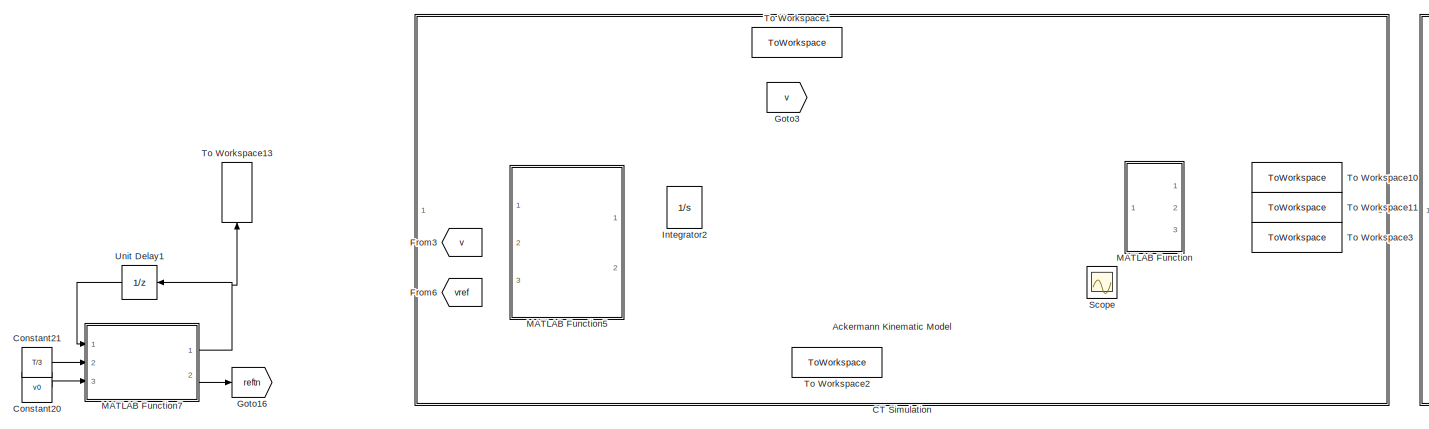
[diagram: root canvas - part 1/4, top left region]
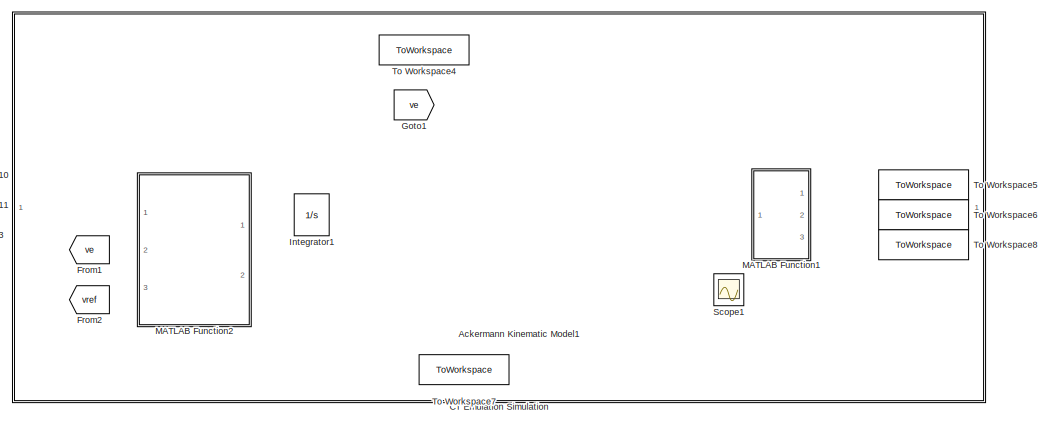
[diagram: root canvas - part 2/4, top right region]
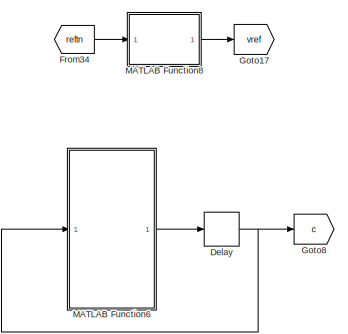
[diagram: root canvas - part 3/4, bottom left region]
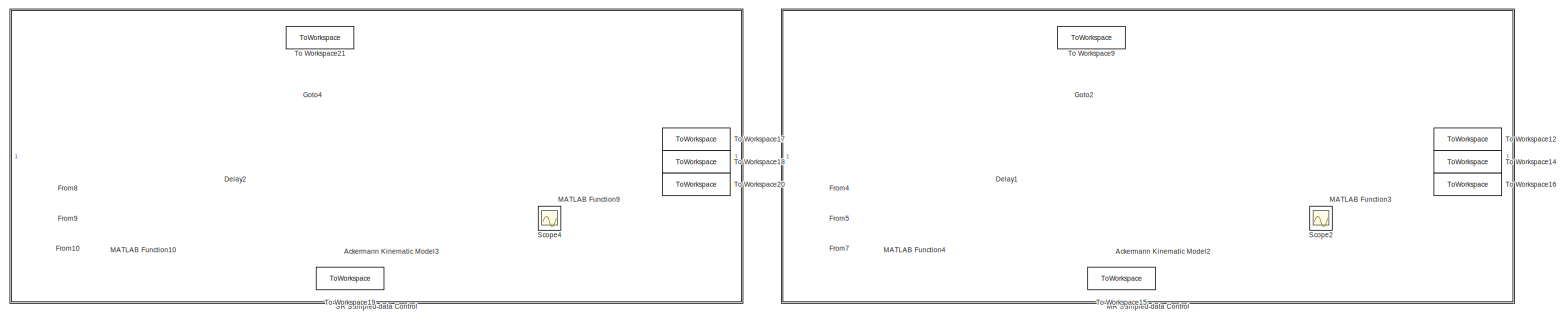
[diagram: root canvas - part 4/4, full width, bottom band]
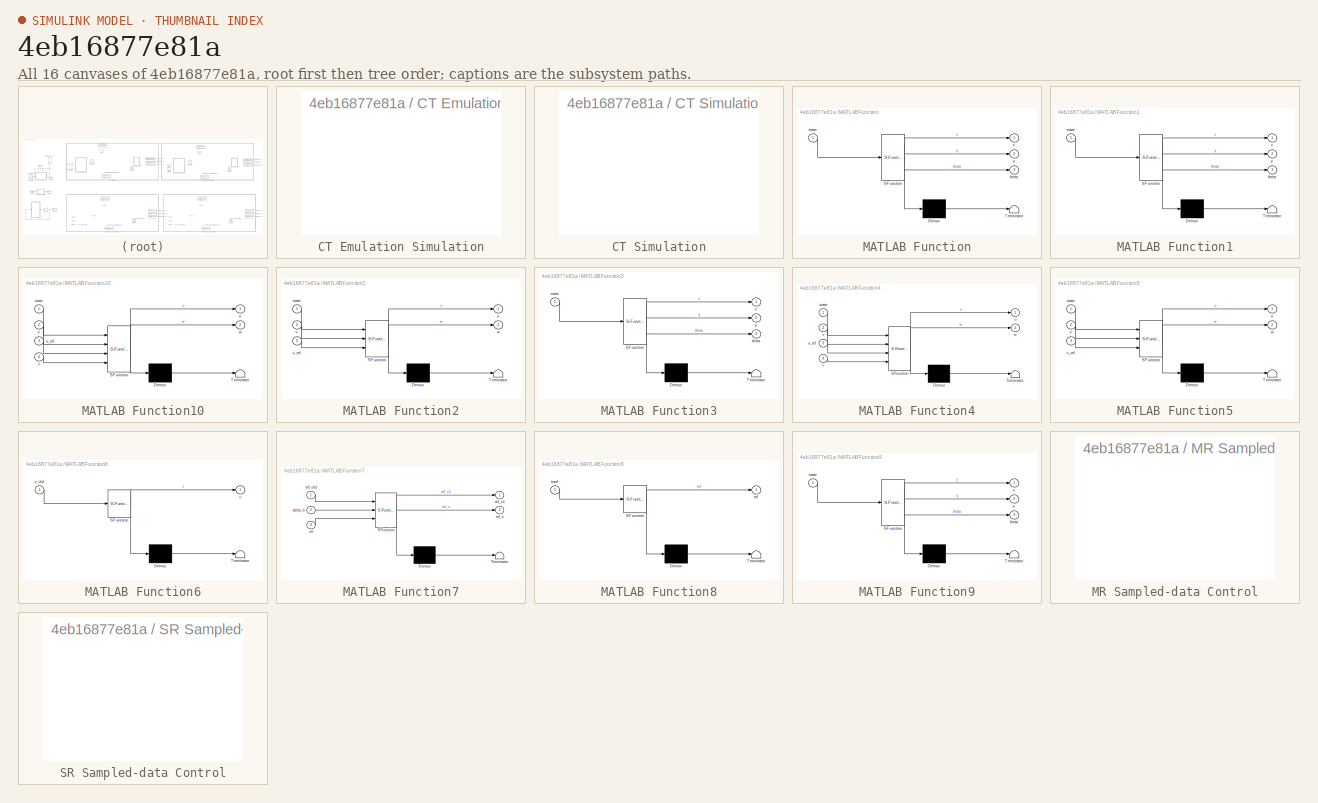
[diagram: thumbnail index - all 16 canvases of the model, root first then tree order]
MODEL slx_4eb16877e81a
KIND model
CONFIG AbsTol = auto
CONFIG EnableMultiTasking = off
CONFIG FixedStep = auto
CONFIG MaxStep = auto
CONFIG MinStep = auto
CONFIG RelTol = 1e-3
CONFIG SampleTimeConstraint = Unconstrained
CONFIG Solver = VariableStepAuto
CONFIG SolverName = VariableStepAuto
CONFIG StartTime = 0.0
CONFIG StopTime = simTime
BLOCK [Reference] Ackermann Kinematic Model  REF=robotmobilelib/Ackermann Kinematic Model
  Ports = [2, 2]
  SourceBlock = robotmobilelib/Ackermann Kinematic Model
  SourceProductBaseCode = RO
  SourceProductName = Robotics System Toolbox
  SourceType = Ackermann Kinematic Model
BLOCK [Reference] Ackermann Kinematic Model1  REF=robotmobilelib/Ackermann Kinematic Model
  Ports = [2, 2]
  SourceBlock = robotmobilelib/Ackermann Kinematic Model
  SourceProductBaseCode = RO
  SourceProductName = Robotics System Toolbox
  SourceType = Ackermann Kinematic Model
BLOCK [Reference] Ackermann Kinematic Model2  REF=robotmobilelib/Ackermann Kinematic Model
  Ports = [2, 2]
  SourceBlock = robotmobilelib/Ackermann Kinematic Model
  SourceProductBaseCode = RO
  SourceProductName = Robotics System Toolbox
  SourceType = Ackermann Kinematic Model
BLOCK [Reference] Ackermann Kinematic Model3  REF=robotmobilelib/Ackermann Kinematic Model
  Ports = [2, 2]
  SourceBlock = robotmobilelib/Ackermann Kinematic Model
  SourceProductBaseCode = RO
  SourceProductName = Robotics System Toolbox
  SourceType = Ackermann Kinematic Model
BLOCK [SubSystem] CT Emulation Simulation
  Ports = []
  RequestExecContextInheritance = off
BLOCK [SubSystem] CT Simulation
  Ports = []
  RequestExecContextInheritance = off
BLOCK [Constant] Constant20
  Value = v0
BLOCK [Constant] Constant21
  Value = T/3
BLOCK [Delay] Delay
  DelayLength = 1
  InitialCondition = 0
  InputPortMap = u0
  Ports = [1, 1]
  SampleTime = T/3
BLOCK [Delay] Delay1
  DelayLength = 1
  InitialCondition = v0
  InputPortMap = u0
  Ports = [1, 1]
  SampleTime = T
BLOCK [Delay] Delay2
  DelayLength = 1
  InitialCondition = v0
  InputPortMap = u0
  Ports = [1, 1]
  SampleTime = T
BLOCK [From] From1
  GotoTag = ve
BLOCK [From] From10
  GotoTag = c
BLOCK [From] From2
  GotoTag = vref
BLOCK [From] From3
  GotoTag = v
BLOCK [From] From34
  GotoTag = reftn
BLOCK [From] From4
  GotoTag = vmr
BLOCK [From] From5
  GotoTag = vref
BLOCK [From] From6
  GotoTag = vref
BLOCK [From] From7
  GotoTag = c
BLOCK [From] From8
  GotoTag = vsd
BLOCK [From] From9
  GotoTag = vref
BLOCK [Goto] Goto1
  GotoTag = ve
BLOCK [Goto] Goto16
  GotoTag = reftn
BLOCK [Goto] Goto17
  GotoTag = vref
BLOCK [Goto] Goto2
  GotoTag = vmr
BLOCK [Goto] Goto3
  GotoTag = v
BLOCK [Goto] Goto4
  GotoTag = vsd
BLOCK [Goto] Goto8
  GotoTag = c
BLOCK [Integrator] Integrator1
  InitialCondition = v0
  Ports = [1, 1]
BLOCK [Integrator] Integrator2
  InitialCondition = v0
  Ports = [1, 1]
BLOCK [SubSystem] MATLAB Function
  ErrorFcn = Stateflow.Translate.translate
  PermitHierarchicalResolution = ExplicitOnly
  Ports = [1, 3]
  RequestExecContextInheritance = off
  SFBlockType = MATLAB Function
  TreatAsAtomicUnit = on
BLOCK [Demux] MATLAB Function/ Demux 
  Outputs = 1
  Ports = [1, 1]
BLOCK [S-Function] MATLAB Function/ SFunction 
  EnableBusSupport = on
  FunctionName = sf_sfun
  PortCounts = [1 4]
  Ports = [1, 4]
  SFcnIsStateOwnerBlock = off
  SFunctionDeploymentMode = off
  Tag = Stateflow S-Function 1
BLOCK [Terminator] MATLAB Function/ Terminator 
BLOCK [Inport] MATLAB Function/state
  IconDisplay = Port number
BLOCK [Outport] MATLAB Function/theta
  IconDisplay = Port number
  Port = 3
BLOCK [Outport] MATLAB Function/x
  IconDisplay = Port number
BLOCK [Outport] MATLAB Function/y
  IconDisplay = Port number
  Port = 2
BLOCK [SubSystem] MATLAB Function1
  ErrorFcn = Stateflow.Translate.translate
  PermitHierarchicalResolution = ExplicitOnly
  Ports = [1, 3]
  RequestExecContextInheritance = off
  SFBlockType = MATLAB Function
  TreatAsAtomicUnit = on
BLOCK [Demux] MATLAB Function1/ Demux 
  Outputs = 1
  Ports = [1, 1]
BLOCK [S-Function] MATLAB Function1/ SFunction 
  EnableBusSupport = on
  FunctionName = sf_sfun
  PortCounts = [1 4]
  Ports = [1, 4]
  SFcnIsStateOwnerBlock = off
  SFunctionDeploymentMode = off
  Tag = Stateflow S-Function 3
BLOCK [Terminator] MATLAB Function1/ Terminator 
BLOCK [Inport] MATLAB Function1/state
  IconDisplay = Port number
BLOCK [Outport] MATLAB Function1/theta
  IconDisplay = Port number
  Port = 3
BLOCK [Outport] MATLAB Function1/x
  IconDisplay = Port number
BLOCK [Outport] MATLAB Function1/y
  IconDisplay = Port number
  Port = 2
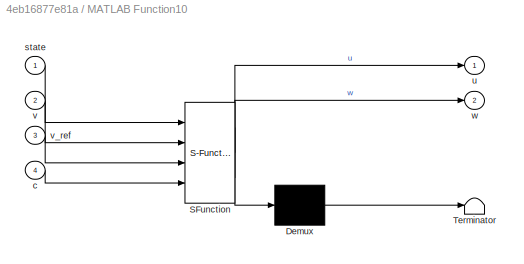
BLOCK [SubSystem] MATLAB Function10
  ErrorFcn = Stateflow.Translate.translate
  PermitHierarchicalResolution = ExplicitOnly
  Ports = [4, 2]
  RequestExecContextInheritance = off
  SFBlockType = MATLAB Function
  SystemSampleTime = T
  TreatAsAtomicUnit = on
BLOCK [Demux] MATLAB Function10/ Demux 
  DisplayOption = bar
  Outputs = 1
  Ports = [1, 1]
BLOCK [S-Function] MATLAB Function10/ SFunction 
  EnableBusSupport = on
  FunctionName = sf_sfun
  Parameters = Change,T,a0,a1,a2,k0,k1,l,pathType,r,refType
  PortCounts = [4 3]
  Ports = [4, 3]
  SFcnIsStateOwnerBlock = off
  SFunctionDeploymentMode = off
  Tag = Stateflow S-Function 10
BLOCK [Terminator] MATLAB Function10/ Terminator 
BLOCK [Inport] MATLAB Function10/c
  IconDisplay = Port number
  Port = 4
BLOCK [Inport] MATLAB Function10/state
  IconDisplay = Port number
BLOCK [Outport] MATLAB Function10/u
  IconDisplay = Port number
BLOCK [Inport] MATLAB Function10/v
  IconDisplay = Port number
  Port = 2
BLOCK [Inport] MATLAB Function10/v_ref
  IconDisplay = Port number
  Port = 3
BLOCK [Outport] MATLAB Function10/w
  IconDisplay = Port number
  Port = 2
BLOCK [SubSystem] MATLAB Function2
  ErrorFcn = Stateflow.Translate.translate
  PermitHierarchicalResolution = ExplicitOnly
  Ports = [3, 2]
  RequestExecContextInheritance = off
  SFBlockType = MATLAB Function
  SystemSampleTime = T
  TreatAsAtomicUnit = on
BLOCK [Demux] MATLAB Function2/ Demux 
  DisplayOption = bar
  Outputs = 1
  Ports = [1, 1]
BLOCK [S-Function] MATLAB Function2/ SFunction 
  EnableBusSupport = on
  FunctionName = sf_sfun
  Parameters = Change,a0,a1,a2,k0,k2,l,pathType,r
  PortCounts = [3 3]
  Ports = [3, 3]
  SFcnIsStateOwnerBlock = off
  SFunctionDeploymentMode = off
  Tag = Stateflow S-Function 4
BLOCK [Terminator] MATLAB Function2/ Terminator 
BLOCK [Inport] MATLAB Function2/state
  IconDisplay = Port number
BLOCK [Outport] MATLAB Function2/u
  IconDisplay = Port number
BLOCK [Inport] MATLAB Function2/v
  IconDisplay = Port number
  Port = 2
BLOCK [Inport] MATLAB Function2/v_ref
  IconDisplay = Port number
  Port = 3
BLOCK [Outport] MATLAB Function2/w
  IconDisplay = Port number
  Port = 2
BLOCK [SubSystem] MATLAB Function3
  ErrorFcn = Stateflow.Translate.translate
  PermitHierarchicalResolution = ExplicitOnly
  Ports = [1, 3]
  RequestExecContextInheritance = off
  SFBlockType = MATLAB Function
  TreatAsAtomicUnit = on
BLOCK [Demux] MATLAB Function3/ Demux 
  Outputs = 1
  Ports = [1, 1]
BLOCK [S-Function] MATLAB Function3/ SFunction 
  EnableBusSupport = on
  FunctionName = sf_sfun
  PortCounts = [1 4]
  Ports = [1, 4]
  SFcnIsStateOwnerBlock = off
  SFunctionDeploymentMode = off
  Tag = Stateflow S-Function 5
BLOCK [Terminator] MATLAB Function3/ Terminator 
BLOCK [Inport] MATLAB Function3/state
  IconDisplay = Port number
BLOCK [Outport] MATLAB Function3/theta
  IconDisplay = Port number
  Port = 3
BLOCK [Outport] MATLAB Function3/x
  IconDisplay = Port number
BLOCK [Outport] MATLAB Function3/y
  IconDisplay = Port number
  Port = 2
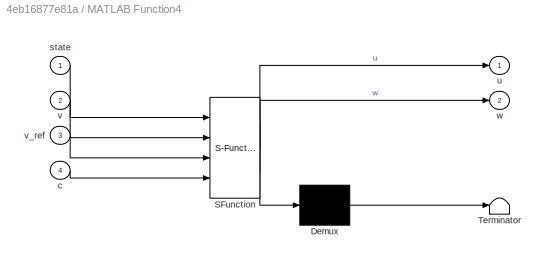
BLOCK [SubSystem] MATLAB Function4
  ErrorFcn = Stateflow.Translate.translate
  PermitHierarchicalResolution = ExplicitOnly
  Ports = [4, 2]
  RequestExecContextInheritance = off
  SFBlockType = MATLAB Function
  SystemSampleTime = T
  TreatAsAtomicUnit = on
BLOCK [Demux] MATLAB Function4/ Demux 
  DisplayOption = bar
  Outputs = 1
  Ports = [1, 1]
BLOCK [S-Function] MATLAB Function4/ SFunction 
  EnableBusSupport = on
  FunctionName = sf_sfun
  Parameters = Change,T,a0,a1,a2,k0,l,pathType,r,refType
  PortCounts = [4 3]
  Ports = [4, 3]
  SFcnIsStateOwnerBlock = off
  SFunctionDeploymentMode = off
  Tag = Stateflow S-Function 6
BLOCK [Terminator] MATLAB Function4/ Terminator 
BLOCK [Inport] MATLAB Function4/c
  IconDisplay = Port number
  Port = 4
BLOCK [Inport] MATLAB Function4/state
  IconDisplay = Port number
BLOCK [Outport] MATLAB Function4/u
  IconDisplay = Port number
BLOCK [Inport] MATLAB Function4/v
  IconDisplay = Port number
  Port = 2
BLOCK [Inport] MATLAB Function4/v_ref
  IconDisplay = Port number
  Port = 3
BLOCK [Outport] MATLAB Function4/w
  IconDisplay = Port number
  Port = 2
BLOCK [SubSystem] MATLAB Function5
  ErrorFcn = Stateflow.Translate.translate
  PermitHierarchicalResolution = ExplicitOnly
  Ports = [3, 2]
  RequestExecContextInheritance = off
  SFBlockType = MATLAB Function
  TreatAsAtomicUnit = on
BLOCK [Demux] MATLAB Function5/ Demux 
  DisplayOption = bar
  Outputs = 1
  Ports = [1, 1]
BLOCK [S-Function] MATLAB Function5/ SFunction 
  EnableBusSupport = on
  FunctionName = sf_sfun
  Parameters = Change,a0,a1,a2,k0,k2,l,pathType,r
  PortCounts = [3 3]
  Ports = [3, 3]
  SFcnIsStateOwnerBlock = off
  SFunctionDeploymentMode = off
  Tag = Stateflow S-Function 2
BLOCK [Terminator] MATLAB Function5/ Terminator 
BLOCK [Inport] MATLAB Function5/state
  IconDisplay = Port number
BLOCK [Outport] MATLAB Function5/u
  IconDisplay = Port number
BLOCK [Inport] MATLAB Function5/v
  IconDisplay = Port number
  Port = 2
BLOCK [Inport] MATLAB Function5/v_ref
  IconDisplay = Port number
  Port = 3
BLOCK [Outport] MATLAB Function5/w
  IconDisplay = Port number
  Port = 2
BLOCK [SubSystem] MATLAB Function6
  ErrorFcn = Stateflow.Translate.translate
  PermitHierarchicalResolution = ExplicitOnly
  Ports = [1, 1]
  RequestExecContextInheritance = off
  SFBlockType = MATLAB Function
  SystemSampleTime = T/3
  TreatAsAtomicUnit = on
BLOCK [Demux] MATLAB Function6/ Demux 
  DisplayOption = bar
  Outputs = 1
  Ports = [1, 1]
BLOCK [S-Function] MATLAB Function6/ SFunction 
  EnableBusSupport = on
  FunctionName = sf_sfun
  PortCounts = [1 2]
  Ports = [1, 2]
  SFcnIsStateOwnerBlock = off
  SFunctionDeploymentMode = off
  Tag = Stateflow S-Function 7
BLOCK [Terminator] MATLAB Function6/ Terminator 
BLOCK [Outport] MATLAB Function6/c
  IconDisplay = Port number
BLOCK [Inport] MATLAB Function6/c_old
  IconDisplay = Port number
BLOCK [SubSystem] MATLAB Function7
  ErrorFcn = Stateflow.Translate.translate
  PermitHierarchicalResolution = ExplicitOnly
  Ports = [3, 2]
  RequestExecContextInheritance = off
  SFBlockType = MATLAB Function
  SystemSampleTime = T
  TreatAsAtomicUnit = on
BLOCK [Demux] MATLAB Function7/ Demux 
  Outputs = 1
  Ports = [1, 1]
BLOCK [S-Function] MATLAB Function7/ SFunction 
  EnableBusSupport = on
  FunctionName = sf_sfun
  Parameters = m
  PortCounts = [3 3]
  Ports = [3, 3]
  SFcnIsStateOwnerBlock = off
  SFunctionDeploymentMode = off
  Tag = Stateflow S-Function 8
BLOCK [Terminator] MATLAB Function7/ Terminator 
BLOCK [Inport] MATLAB Function7/delta_b
  IconDisplay = Port number
  Port = 2
BLOCK [Inport] MATLAB Function7/ref_old
  IconDisplay = Port number
BLOCK [Outport] MATLAB Function7/ref_x
  IconDisplay = Port number
  Port = 2
  VectorParamsAs1DForOutWhenUnconnected = off
BLOCK [Outport] MATLAB Function7/ref_x1
  IconDisplay = Port number
  VectorParamsAs1DForOutWhenUnconnected = off
BLOCK [Inport] MATLAB Function7/v0
  IconDisplay = Port number
  Port = 3
BLOCK [SubSystem] MATLAB Function8
  ErrorFcn = Stateflow.Translate.translate
  PermitHierarchicalResolution = ExplicitOnly
  Ports = [1, 1]
  RequestExecContextInheritance = off
  SFBlockType = MATLAB Function
  TreatAsAtomicUnit = on
BLOCK [Demux] MATLAB Function8/ Demux 
  Outputs = 1
  Ports = [1, 1]
BLOCK [S-Function] MATLAB Function8/ SFunction 
  EnableBusSupport = on
  FunctionName = sf_sfun
  Parameters = refType,v_ref
  PortCounts = [1 2]
  Ports = [1, 2]
  SFcnIsStateOwnerBlock = off
  SFunctionDeploymentMode = off
  Tag = Stateflow S-Function 9
BLOCK [Terminator] MATLAB Function8/ Terminator 
BLOCK [Outport] MATLAB Function8/ref
  IconDisplay = Port number
BLOCK [Inport] MATLAB Function8/tnref
  IconDisplay = Port number
BLOCK [SubSystem] MATLAB Function9
  ErrorFcn = Stateflow.Translate.translate
  PermitHierarchicalResolution = ExplicitOnly
  Ports = [1, 3]
  RequestExecContextInheritance = off
  SFBlockType = MATLAB Function
  TreatAsAtomicUnit = on
BLOCK [Demux] MATLAB Function9/ Demux 
  Outputs = 1
  Ports = [1, 1]
BLOCK [S-Function] MATLAB Function9/ SFunction 
  EnableBusSupport = on
  FunctionName = sf_sfun
  PortCounts = [1 4]
  Ports = [1, 4]
  SFcnIsStateOwnerBlock = off
  SFunctionDeploymentMode = off
  Tag = Stateflow S-Function 11
BLOCK [Terminator] MATLAB Function9/ Terminator 
BLOCK [Inport] MATLAB Function9/state
  IconDisplay = Port number
BLOCK [Outport] MATLAB Function9/theta
  IconDisplay = Port number
  Port = 3
BLOCK [Outport] MATLAB Function9/x
  IconDisplay = Port number
BLOCK [Outport] MATLAB Function9/y
  IconDisplay = Port number
  Port = 2
BLOCK [SubSystem] MR Sampled-data Control
  Ports = []
  RequestExecContextInheritance = off
BLOCK [SubSystem] SR Sampled-data Control
  Ports = []
  RequestExecContextInheritance = off
BLOCK [Scope] Scope
  Floating = off
  NumInputPorts = 1
  Ports = [1]
  ScopeSpecificationString = Simulink.scopes.TimeScopeBlockCfg('CurrentConfiguration', extmgr.ConfigurationSet(extmgr.Configuration('Core','General UI',true),extmgr.Configuration('Core','Source UI',true),extmgr.Configuration('Sources','WiredSimulink',true),extmgr.Configuration('Visuals','Time Domain',true),extmgr.Configuration('Tools','Plot Navigation',true),extmgr.Configuration('Tools','Measurements',true)),'Version','2019b'...<+1ch>
BLOCK [Scope] Scope1
  Floating = off
  NumInputPorts = 1
  Ports = [1]
  ScopeSpecificationString = Simulink.scopes.TimeScopeBlockCfg('CurrentConfiguration', extmgr.ConfigurationSet(extmgr.Configuration('Core','General UI',true),extmgr.Configuration('Core','Source UI',true),extmgr.Configuration('Sources','WiredSimulink',true,'DataLoggingVariableName','ScopeData1'),extmgr.Configuration('Visuals','Time Domain',true),extmgr.Configuration('Tools','Plot Navigation',true),extmgr.Configuration('Tools',...<+40ch>
BLOCK [Scope] Scope2
  Floating = off
  NumInputPorts = 1
  Ports = [1]
  ScopeSpecificationString = Simulink.scopes.TimeScopeBlockCfg('CurrentConfiguration', extmgr.ConfigurationSet(extmgr.Configuration('Core','General UI',true),extmgr.Configuration('Core','Source UI',true),extmgr.Configuration('Sources','WiredSimulink',true,'DataLoggingVariableName','ScopeData2'),extmgr.Configuration('Visuals','Time Domain',true,'SerializedDisplays',{struct('MinYLimReal','-2.5','MaxYLimReal','2.5','YLabelReal',...<+1489ch>
BLOCK [Scope] Scope4
  Floating = off
  NumInputPorts = 1
  Ports = [1]
  ScopeSpecificationString = Simulink.scopes.TimeScopeBlockCfg('CurrentConfiguration', extmgr.ConfigurationSet(extmgr.Configuration('Core','General UI',true),extmgr.Configuration('Core','Source UI',true),extmgr.Configuration('Sources','WiredSimulink',true,'DataLoggingVariableName','ScopeData4'),extmgr.Configuration('Visuals','Time Domain',true,'SerializedDisplays',{struct('MinYLimReal','-2.5','MaxYLimReal','2.5','YLabelReal',...<+1489ch>
BLOCK [ToWorkspace] To Workspace1
  FixptAsFi = on
  MaxDataPoints = inf
  Ports = [1]
  SampleTime = 10^-3
  Save2DSignal = 2-D array (concatenate along first dimension)
  VariableName = v
BLOCK [ToWorkspace] To Workspace10
  FixptAsFi = on
  MaxDataPoints = inf
  Ports = [1]
  SampleTime = 10^-3
  Save2DSignal = 2-D array (concatenate along first dimension)
  VariableName = x
BLOCK [ToWorkspace] To Workspace11
  FixptAsFi = on
  MaxDataPoints = inf
  Ports = [1]
  SampleTime = 10^-3
  Save2DSignal = 2-D array (concatenate along first dimension)
  VariableName = y
BLOCK [ToWorkspace] To Workspace12
  FixptAsFi = on
  MaxDataPoints = inf
  Ports = [1]
  SampleTime = 10^-3
  Save2DSignal = 2-D array (concatenate along first dimension)
  VariableName = xmr
BLOCK [ToWorkspace] To Workspace13
  FixptAsFi = on
  MaxDataPoints = inf
  Ports = [1]
  SampleTime = T/3
  VariableName = ref_MR
BLOCK [ToWorkspace] To Workspace14
  FixptAsFi = on
  MaxDataPoints = inf
  Ports = [1]
  SampleTime = 10^-3
  Save2DSignal = 2-D array (concatenate along first dimension)
  VariableName = ymr
BLOCK [ToWorkspace] To Workspace15
  FixptAsFi = on
  MaxDataPoints = inf
  Ports = [1]
  SampleTime = 10^-3
  Save2DSignal = 2-D array (concatenate along first dimension)
  VariableName = wmr
BLOCK [ToWorkspace] To Workspace16
  FixptAsFi = on
  MaxDataPoints = inf
  Ports = [1]
  SampleTime = 10^-3
  Save2DSignal = 2-D array (concatenate along first dimension)
  VariableName = thetamr
BLOCK [ToWorkspace] To Workspace17
  FixptAsFi = on
  MaxDataPoints = inf
  Ports = [1]
  SampleTime = 10^-3
  Save2DSignal = 2-D array (concatenate along first dimension)
  VariableName = xsd
BLOCK [ToWorkspace] To Workspace18
  FixptAsFi = on
  MaxDataPoints = inf
  Ports = [1]
  SampleTime = 10^-3
  Save2DSignal = 2-D array (concatenate along first dimension)
  VariableName = ysd
BLOCK [ToWorkspace] To Workspace19
  FixptAsFi = on
  MaxDataPoints = inf
  Ports = [1]
  SampleTime = 10^-3
  Save2DSignal = 2-D array (concatenate along first dimension)
  VariableName = wsd
BLOCK [ToWorkspace] To Workspace2
  FixptAsFi = on
  MaxDataPoints = inf
  Ports = [1]
  SampleTime = 10^-3
  Save2DSignal = 2-D array (concatenate along first dimension)
  VariableName = w
BLOCK [ToWorkspace] To Workspace20
  FixptAsFi = on
  MaxDataPoints = inf
  Ports = [1]
  SampleTime = 10^-3
  Save2DSignal = 2-D array (concatenate along first dimension)
  VariableName = thetasd
BLOCK [ToWorkspace] To Workspace21
  FixptAsFi = on
  MaxDataPoints = inf
  Ports = [1]
  SampleTime = 10^-3
  Save2DSignal = 2-D array (concatenate along first dimension)
  VariableName = vsd
BLOCK [ToWorkspace] To Workspace3
  FixptAsFi = on
  MaxDataPoints = inf
  Ports = [1]
  SampleTime = 10^-3
  Save2DSignal = 2-D array (concatenate along first dimension)
  VariableName = theta
BLOCK [ToWorkspace] To Workspace4
  FixptAsFi = on
  MaxDataPoints = inf
  Ports = [1]
  SampleTime = 10^-3
  Save2DSignal = 2-D array (concatenate along first dimension)
  VariableName = ve
BLOCK [ToWorkspace] To Workspace5
  FixptAsFi = on
  MaxDataPoints = inf
  Ports = [1]
  SampleTime = 10^-3
  Save2DSignal = 2-D array (concatenate along first dimension)
  VariableName = xe
BLOCK [ToWorkspace] To Workspace6
  FixptAsFi = on
  MaxDataPoints = inf
  Ports = [1]
  SampleTime = 10^-3
  Save2DSignal = 2-D array (concatenate along first dimension)
  VariableName = ye
BLOCK [ToWorkspace] To Workspace7
  FixptAsFi = on
  MaxDataPoints = inf
  Ports = [1]
  SampleTime = 10^-3
  Save2DSignal = 2-D array (concatenate along first dimension)
  VariableName = we
BLOCK [ToWorkspace] To Workspace8
  FixptAsFi = on
  MaxDataPoints = inf
  Ports = [1]
  SampleTime = 10^-3
  Save2DSignal = 2-D array (concatenate along first dimension)
  VariableName = thetae
BLOCK [ToWorkspace] To Workspace9
  FixptAsFi = on
  MaxDataPoints = inf
  Ports = [1]
  SampleTime = 10^-3
  Save2DSignal = 2-D array (concatenate along first dimension)
  VariableName = vmr
BLOCK [UnitDelay] Unit Delay1
  HasFrameUpgradeWarning = on
  InitialCondition = ref0
  SampleTime = T/3
NET Ackermann Kinematic Model1:1 -> MATLAB Function1:1, MATLAB Function2:1
LINE Ackermann Kinematic Model1:2 -> Scope1:1
NET Ackermann Kinematic Model2:1 -> MATLAB Function3:1, MATLAB Function4:1
LINE Ackermann Kinematic Model2:2 -> Scope2:1
NET Ackermann Kinematic Model3:1 -> MATLAB Function10:1, MATLAB Function9:1
LINE Ackermann Kinematic Model3:2 -> Scope4:1
NET Ackermann Kinematic Model:1 -> MATLAB Function5:1, MATLAB Function:1
LINE Ackermann Kinematic Model:2 -> Scope:1
LINE Constant20:1 -> MATLAB Function7:3
LINE Constant21:1 -> MATLAB Function7:2
NET Delay1:1 -> Ackermann Kinematic Model2:1, Goto2:1, To Workspace9:1
NET Delay2:1 -> Ackermann Kinematic Model3:1, Goto4:1, To Workspace21:1
NET Delay:1 -> Goto8:1, MATLAB Function6:1
LINE From10:1 -> MATLAB Function10:4
LINE From1:1 -> MATLAB Function2:2
LINE From2:1 -> MATLAB Function2:3
LINE From34:1 -> MATLAB Function8:1
LINE From3:1 -> MATLAB Function5:2
LINE From4:1 -> MATLAB Function4:2
LINE From5:1 -> MATLAB Function4:3
LINE From6:1 -> MATLAB Function5:3
LINE From7:1 -> MATLAB Function4:4
LINE From8:1 -> MATLAB Function10:2
LINE From9:1 -> MATLAB Function10:3
NET Integrator1:1 -> Ackermann Kinematic Model1:1, Goto1:1, To Workspace4:1
NET Integrator2:1 -> Ackermann Kinematic Model:1, Goto3:1, To Workspace1:1
LINE MATLAB Function10:1 -> Delay2:1
NET MATLAB Function10:2 -> Ackermann Kinematic Model3:2, To Workspace19:1
LINE MATLAB Function1:1 -> To Workspace5:1
LINE MATLAB Function1:2 -> To Workspace6:1
LINE MATLAB Function1:3 -> To Workspace8:1
LINE MATLAB Function2:1 -> Integrator1:1
NET MATLAB Function2:2 -> Ackermann Kinematic Model1:2, To Workspace7:1
LINE MATLAB Function3:1 -> To Workspace12:1
LINE MATLAB Function3:2 -> To Workspace14:1
LINE MATLAB Function3:3 -> To Workspace16:1
LINE MATLAB Function4:1 -> Delay1:1
NET MATLAB Function4:2 -> Ackermann Kinematic Model2:2, To Workspace15:1
LINE MATLAB Function5:1 -> Integrator2:1
NET MATLAB Function5:2 -> Ackermann Kinematic Model:2, To Workspace2:1
LINE MATLAB Function6:1 -> Delay:1
NET MATLAB Function7:1 -> To Workspace13:1, Unit Delay1:1
LINE MATLAB Function7:2 -> Goto16:1
LINE MATLAB Function8:1 -> Goto17:1
LINE MATLAB Function9:1 -> To Workspace17:1
LINE MATLAB Function9:2 -> To Workspace18:1
LINE MATLAB Function9:3 -> To Workspace20:1
LINE MATLAB Function:1 -> To Workspace10:1
LINE MATLAB Function:2 -> To Workspace11:1
LINE MATLAB Function:3 -> To Workspace3:1
LINE Unit Delay1:1 -> MATLAB Function7:1
note: NET lines group one-source signal fan-out (src -> all destinations, sorted); 1:1 wires keep LINE
CHART MATLAB Function states=1 transitions=1
  STATE_LABEL 'eML_blk_kernel()'
  STATE_LABEL 'SCRIPT:\nfunction [x, y, theta] = fcn(state)\n\nx = state(1);\ny = state(2);\ntheta = state(3);'
CHART MATLAB Function5 states=1 transitions=1
  STATE_LABEL 'eML_blk_kernel()'
  STATE_LABEL 'SCRIPT:\nfunction [u,w] = MATLAB_Function5(state, v, v_ref, pathType, k0, a0, a1, a2, r, l, Change, k2)\n\nx = state(1); y = state(2); theta = state(3); phi = state(4);\neta1 = v;\nif pathType == 1\n    alpha = x^2+y^2 - r^2;\n    dalpha = 2*v*(x*cos(theta) + y*sin(theta));\n    ddalpha = (2*v^2*(l*cos(phi) + y*cos(theta)*sin(phi) - x*sin(phi)*sin(theta)))/(l*cos(phi));\n    Lg1lfh2 = (2*eta1^2*(y*cos(thet...<+1459ch>'
CHART MATLAB Function1 states=1 transitions=1
  STATE_LABEL 'eML_blk_kernel()'
  STATE_LABEL 'SCRIPT:\nfunction [x, y, theta] = fcn(state)\n\nx = state(1);\ny = state(2);\ntheta = state(3);'
CHART MATLAB Function2 states=1 transitions=1
  STATE_LABEL 'eML_blk_kernel()'
  STATE_LABEL 'SCRIPT:\nfunction [u,w] = MATLAB_Function5(state, v, v_ref, pathType, k0, a0, a1, a2, r, l, Change, k2)\n\nx = state(1); y = state(2); theta = state(3); phi = state(4);\neta1 = v;\nif pathType == 1\n    alpha = x^2+y^2 - r^2;\n    dalpha = 2*v*(x*cos(theta) + y*sin(theta));\n    ddalpha = (2*v^2*(l*cos(phi) + y*cos(theta)*sin(phi) - x*sin(phi)*sin(theta)))/(l*cos(phi));\n    Lg1lfh2 = (2*eta1^2*(y*cos(thet...<+1458ch>'
CHART MATLAB Function3 states=1 transitions=1
  STATE_LABEL 'eML_blk_kernel()'
  STATE_LABEL 'SCRIPT:\nfunction [x, y, theta] = fcn(state)\n\nx = state(1);\ny = state(2);\ntheta = state(3);'
CHART MATLAB Function4 states=1 transitions=1
  STATE_LABEL 'eML_blk_kernel()'
  STATE_LABEL 'SCRIPT:\nfunction [u,w] = MATLAB_Function5(state, v, v_ref, c ,pathType, r, a2, a1, a0, k0, l , Change, T, refType)\n\nx = state(1); y = state(2); z = state(3); theta = state(4);\n\nd = T/3; \nif refType == 1\n    L = exp(-k0*T); \nelse\n    L = 0;  \nend\n \n\nif pathType == 1\n    w0 = [   -(2*a2*l^2*v^2*cos(theta)^2 - 2*v^3*y*sin(z) - a0*l^2*r^2*cos(theta)^2 - 2*v^3*x*cos(z) + a0*l^2*x^2*cos(theta)^2 + a0*l^...<+3608ch>'
CHART MATLAB Function6 states=1 transitions=1
  STATE_LABEL 'eML_blk_kernel()'
  STATE_LABEL 'SCRIPT:\nfunction c  = fcn(c_old)\n\nif c_old < 3\n    c = c_old+1; \nelse \n    c = 0;  \nend\n\n'
CHART MATLAB Function7 states=1 transitions=1
  STATE_LABEL 'eML_blk_kernel()'
  STATE_LABEL 'SCRIPT:\nfunction [ref_x1,ref_x] = fcn(ref_old, delta_b, v0, m)\ndelta = delta_b*3; \na1 = m;\nref_old(2) = 0; \n\nref_x1 = ref_old + [delta*v0*a1; v0*a1];\n\nref_x2 = ref_x1 + [delta*v0*a1; v0*a1];\nref_x = [ref_x1 ref_x2];'
CHART MATLAB Function8 states=1 transitions=1
  STATE_LABEL 'eML_blk_kernel()'
  STATE_LABEL 'SCRIPT:\nfunction ref = fcn(tnref,refType,v_ref)\n\nif (refType == 1)\n    ref = v_ref;\nelse\n    ref = tnref(1,2);\n    \nend\n'
CHART MATLAB Function10 states=1 transitions=1
  STATE_LABEL 'eML_blk_kernel()'
  STATE_LABEL 'SCRIPT:\nfunction [u,w] = MATLAB_Function5(state, v, v_ref, c ,pathType, r, a2, a1, a0, k0, l , Change, T, refType, k1)\n\nx = state(1); y = state(2); theta = state(3); phi = state(4);\neta1 = v;\ndelta  = T;\n\nif pathType == 1\n    alpha = x^2+y^2 - r^2;\n    dalpha = 2*v*(x*cos(theta) + y*sin(theta));\n    ddalpha = (2*v^2*(l*cos(phi) + y*cos(theta)*sin(phi) - x*sin(phi)*sin(theta)))/(l*cos(phi));\n    Lg...<+1615ch>'
CHART MATLAB Function9 states=1 transitions=1
  STATE_LABEL 'eML_blk_kernel()'
  STATE_LABEL 'SCRIPT:\nfunction [x, y, theta] = fcn(state)\n\nx = state(1);\ny = state(2);\ntheta = state(3);'
